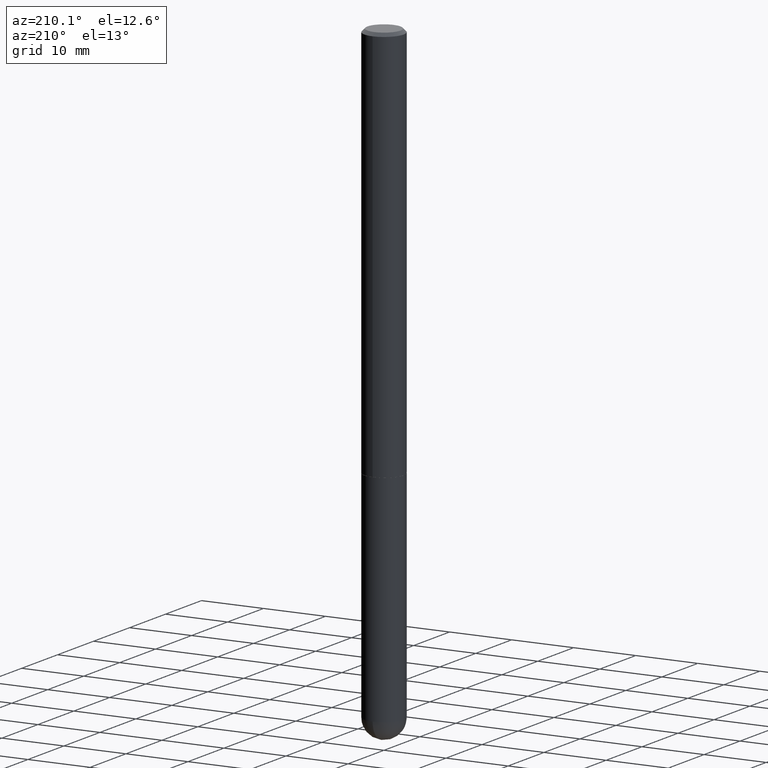
[diagram: clean part render]
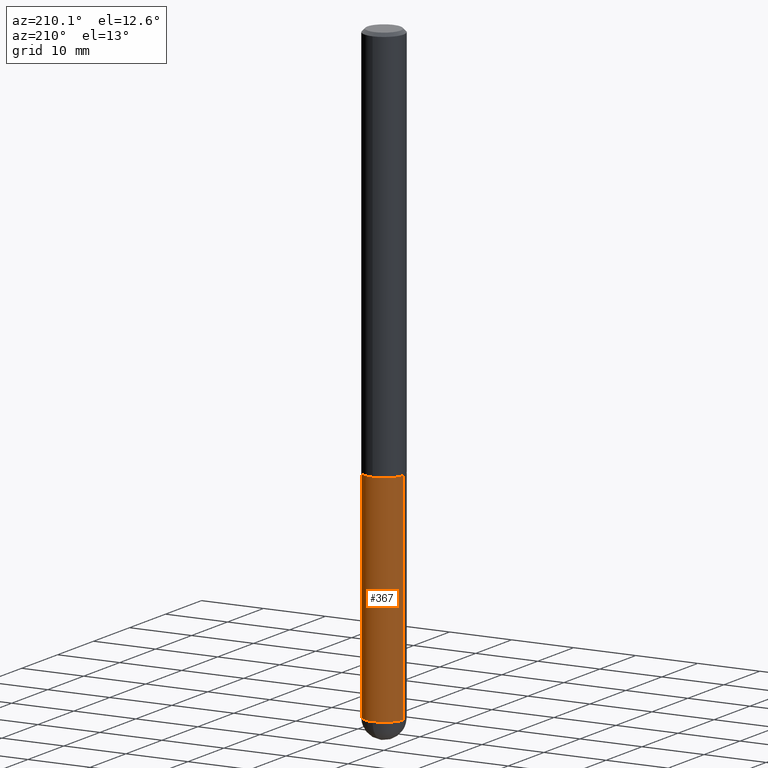
[diagram: same view with one face highlighted and labeled with its STEP entity id]
A machine part, auxiliary view. The second image highlights one B-rep face of the part: STEP entity #367.
In plain terms, the highlighted cylindrical surface (edge-blend (fillet) strip) has radius 3.175 mm, axis along (-0, 0, 1).
Its self-contained STEP definition (entity closure, byte-faithful):
#20 = DIRECTION ( 'NONE',  ( -2.445468806185136877E-29, 3.491481338843145188E-15, 1.000000000000000000 ) ) ;
#21 = LINE ( 'NONE', #300, #344 ) ;
#52 = FACE_OUTER_BOUND ( 'NONE', #221, .T. ) ;
#61 = DIRECTION ( 'NONE',  ( -2.445468806185136597E-29, 3.491481338843145583E-15, 1.000000000000000000 ) ) ;
#64 = VECTOR ( 'NONE', #20, 39.37007874015748143 ) ;
#69 = ORIENTED_EDGE ( 'NONE', *, *, #131, .T. ) ;
#76 = DIRECTION ( 'NONE',  ( 1.000000000000000000, -6.982962677686261189E-15, 0.000000000000000000 ) ) ;
#90 = AXIS2_PLACEMENT_3D ( 'NONE', #141, #142, #76 ) ;
#100 = CARTESIAN_POINT ( 'NONE',  ( 0.000000000000000000, 0.000000000000000000, 0.000000000000000000 ) ) ;
#112 = CARTESIAN_POINT ( 'NONE',  ( 9.476191623967404313E-29, -1.352949018801718908E-14, -3.875000000000000000 ) ) ;
#113 = CARTESIAN_POINT ( 'NONE',  ( 8.728703347108771147E-16, 0.1249999999999863443, -3.875000000000000444 ) ) ;
#131 = EDGE_CURVE ( 'NONE', #345, #306, #248, .T. ) ;
#141 = CARTESIAN_POINT ( 'NONE',  ( 9.476191623967404313E-29, -1.352949018801718908E-14, -3.875000000000000000 ) ) ;
#142 = DIRECTION ( 'NONE',  ( -2.445468806185136597E-29, 3.491481338843145583E-15, 1.000000000000000000 ) ) ;
#149 = VERTEX_POINT ( 'NONE', #392 ) ;
#153 = CARTESIAN_POINT ( 'NONE',  ( 6.113672015462842613E-29, -8.728703347107864943E-15, -2.500000000000000000 ) ) ;
#176 = DIRECTION ( 'NONE',  ( 1.000000000000000000, -6.982962677686261189E-15, 0.000000000000000000 ) ) ;
#177 = CYLINDRICAL_SURFACE ( 'NONE', #286, 0.1250000000000000000 ) ;
#182 = ORIENTED_EDGE ( 'NONE', *, *, #287, .F. ) ;
#188 = VERTEX_POINT ( 'NONE', #389 ) ;
#206 = CARTESIAN_POINT ( 'NONE',  ( -0.1250000000000000000, 8.881784197001252323E-16, -6.148668862818632227E-30 ) ) ;
#210 = ORIENTED_EDGE ( 'NONE', *, *, #218, .F. ) ;
#212 = CARTESIAN_POINT ( 'NONE',  ( 0.1250000000000000278, -1.200196710227331272E-14, -3.875000000000000000 ) ) ;
#213 = DIRECTION ( 'NONE',  ( 1.000000000000000000, -6.982962677686270655E-15, 0.000000000000000000 ) ) ;
#215 = CIRCLE ( 'NONE', #217, 0.1250000000000000278 ) ;
#217 = AXIS2_PLACEMENT_3D ( 'NONE', #112, #401, #176 ) ;
#218 = EDGE_CURVE ( 'NONE', #345, #269, #21, .T. ) ;
#221 = EDGE_LOOP ( 'NONE', ( #278, #308, #182, #210, #69 ) ) ;
#248 = CIRCLE ( 'NONE', #90, 0.1250000000000000278 ) ;
#269 = VERTEX_POINT ( 'NONE', #398 ) ;
#278 = ORIENTED_EDGE ( 'NONE', *, *, #321, .T. ) ;
#286 = AXIS2_PLACEMENT_3D ( 'NONE', #100, #61, #369 ) ;
#287 = EDGE_CURVE ( 'NONE', #269, #188, #294, .T. ) ;
#293 = EDGE_CURVE ( 'NONE', #149, #188, #331, .T. ) ;
#294 = CIRCLE ( 'NONE', #397, 0.1250000000000000000 ) ;
#300 = CARTESIAN_POINT ( 'NONE',  ( 0.1250000000000000000, -8.728703347107833388E-16, 6.095220969744919741E-30 ) ) ;
#302 = DIRECTION ( 'NONE',  ( -2.445468806185136597E-29, 3.491481338843145583E-15, 1.000000000000000000 ) ) ;
#306 = VERTEX_POINT ( 'NONE', #113 ) ;
#308 = ORIENTED_EDGE ( 'NONE', *, *, #293, .T. ) ;
#321 = EDGE_CURVE ( 'NONE', #306, #149, #215, .T. ) ;
#331 = LINE ( 'NONE', #206, #64 ) ;
#344 = VECTOR ( 'NONE', #360, 39.37007874015748143 ) ;
#345 = VERTEX_POINT ( 'NONE', #212 ) ;
#360 = DIRECTION ( 'NONE',  ( -2.445468806185136877E-29, 3.491481338843145188E-15, 1.000000000000000000 ) ) ;
#367 = ADVANCED_FACE ( 'NONE', ( #52 ), #177, .T. ) ;
#369 = DIRECTION ( 'NONE',  ( 1.000000000000000000, -6.982962677686266711E-15, 4.876176775795935793E-29 ) ) ;
#389 = CARTESIAN_POINT ( 'NONE',  ( -0.1250000000000000000, -1.024091834786240099E-14, -2.500000000000000000 ) ) ;
#392 = CARTESIAN_POINT ( 'NONE',  ( -0.1250000000000000278, -1.024091834786240415E-14, -3.875000000000000000 ) ) ;
#397 = AXIS2_PLACEMENT_3D ( 'NONE', #153, #302, #213 ) ;
#398 = CARTESIAN_POINT ( 'NONE',  ( 0.1250000000000000000, -9.601573681818648281E-15, -2.500000000000000000 ) ) ;
#401 = DIRECTION ( 'NONE',  ( -2.445468806185136597E-29, 3.491481338843145583E-15, 1.000000000000000000 ) ) ;